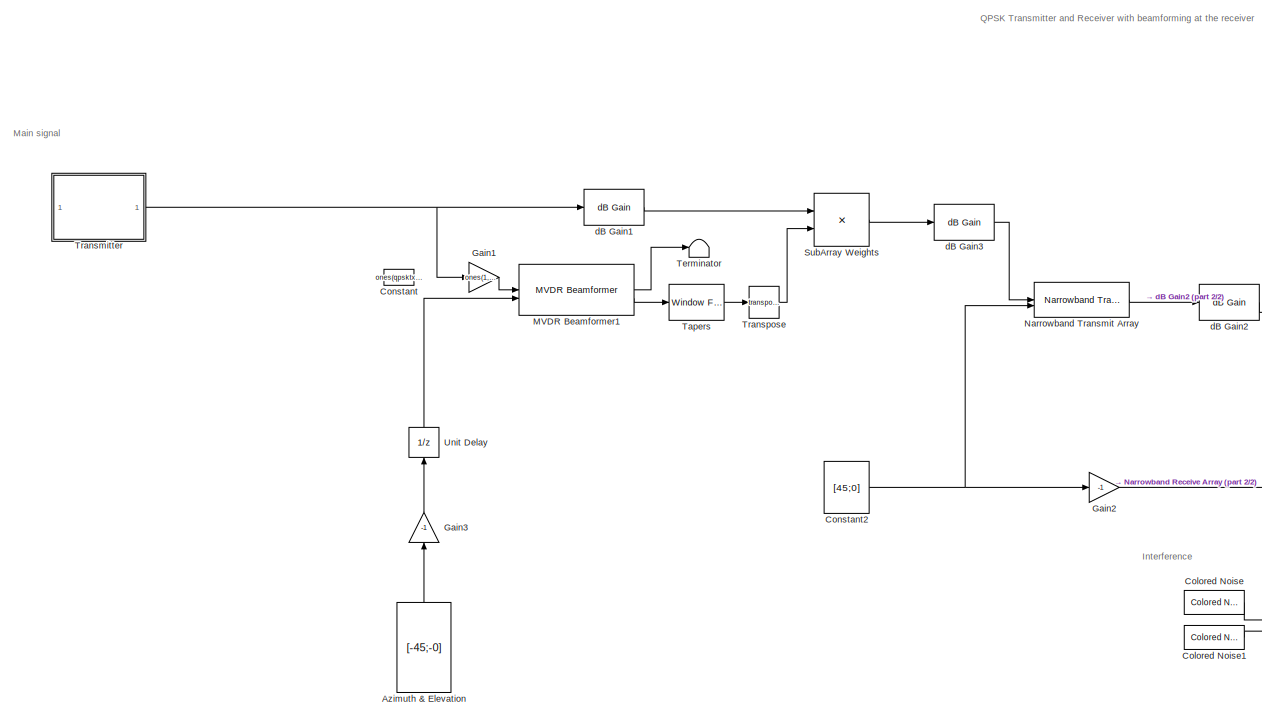
[diagram: root canvas - part 1/2, left side, full height]
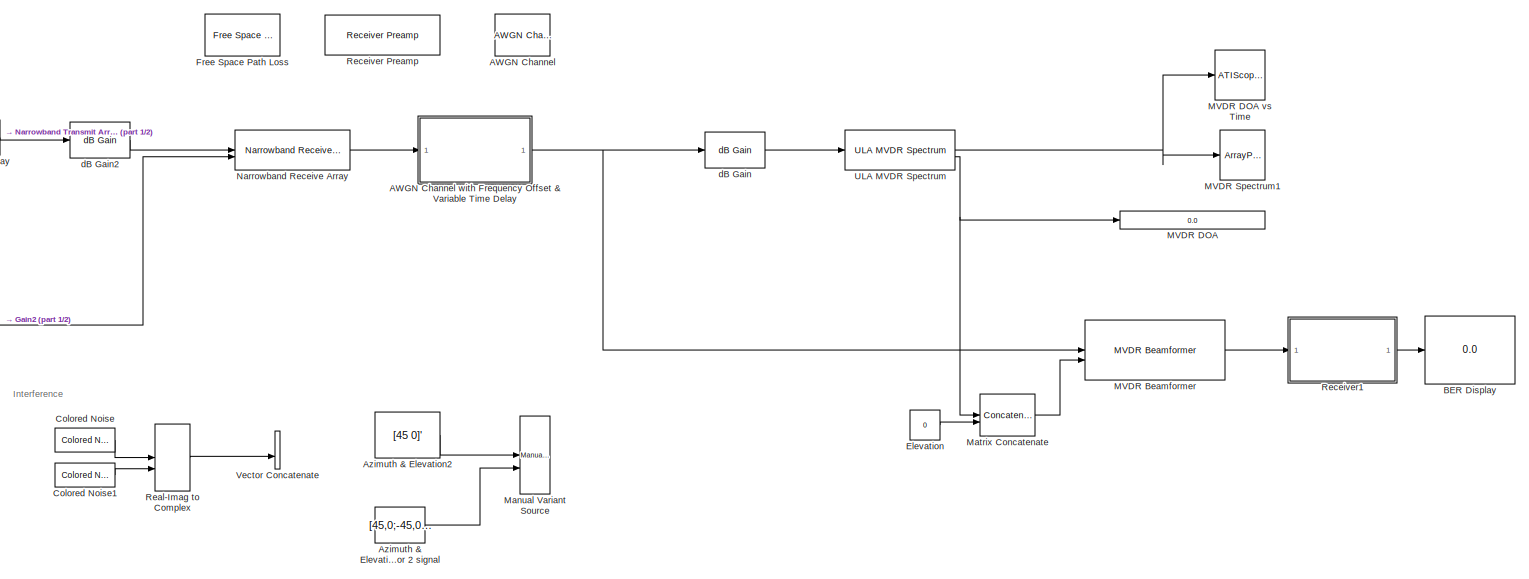
[diagram: root canvas - part 2/2, right side, full height]
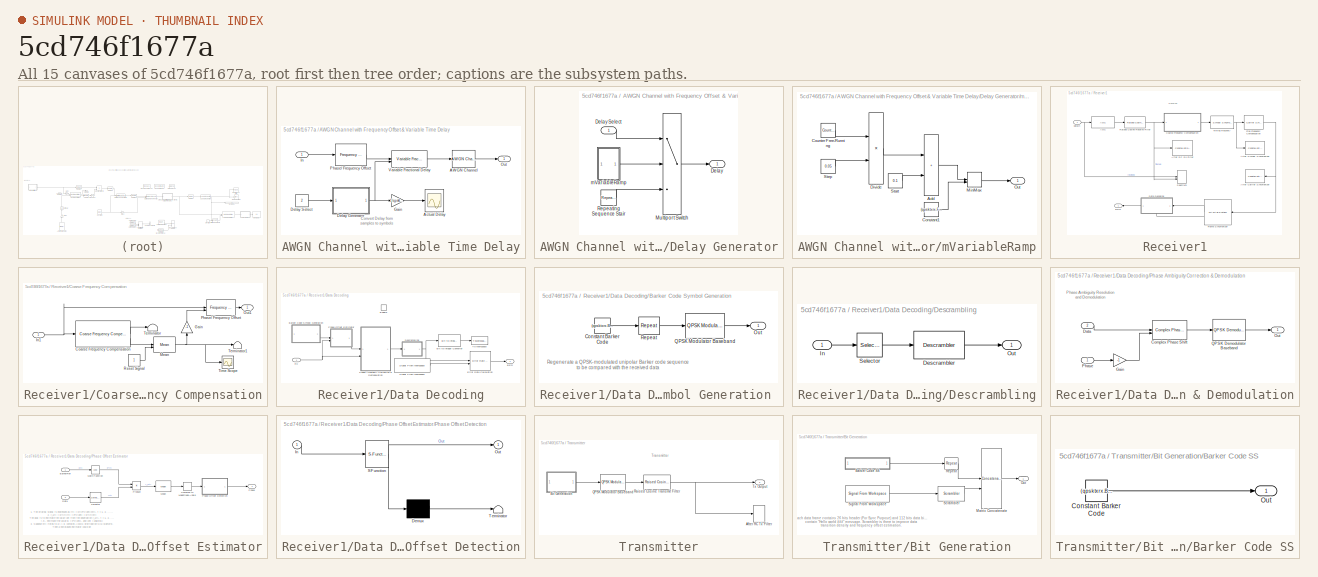
[diagram: thumbnail index - all 15 canvases of the model, root first then tree order]
MODEL slx_5cd746f1677a
KIND model
CONFIG AbsTol = auto
CONFIG EnableMultiTasking = off
CONFIG FixedStep = auto
CONFIG MaxStep = auto
CONFIG MinStep = auto
CONFIG RelTol = 1e-3
CONFIG SampleTimeConstraint = Unconstrained
CONFIG SolverName = FixedStepAuto
CONFIG StartTime = 0.0
CONFIG StopTime = inf
BLOCK [Reference] AWGN Channel  REF=commchan3/AWGN
Channel
  Commented = on
  SourceBlock = commchan3/AWGN\nChannel
  SourceType = AWGN Channel
  UserDataPersistent = on
BLOCK [SubSystem] AWGN Channel with Frequency Offset & Variable Time Delay
BLOCK [Reference] AWGN Channel with Frequency Offset & Variable Time Delay/AWGN Channel  REF=commchan3/AWGN
Channel
  SourceBlock = commchan3/AWGN\nChannel
  SourceType = AWGN Channel
  UserDataPersistent = on
BLOCK [Scope] AWGN Channel with Frequency Offset & Variable Time Delay/Actual Delay
  Commented = on
  DefaultConfigurationName = spbscopes.TimeScopeBlockCfg
  Floating = off
  NumInputPorts = 1
  ScopeSpecificationString = spbscopes.TimeScopeBlockCfg('CurrentConfiguration', extmgr.ConfigurationSet(extmgr.Configuration('Core','General UI',true,'FigureColor',[0.701960784313725 0.701960784313725 0.701960784313725]),extmgr.Configuration('Core','Source UI',true),extmgr.Configuration('Sources','WiredSimulink',true,'DataLoggingVariableName','ScopeDataActualDelay'),extmgr.Configuration('Visuals','Time Domain',true,'DisplayP...<+1372ch>
BLOCK [SubSystem] AWGN Channel with Frequency Offset & Variable Time Delay/Delay Generator
BLOCK [Outport] AWGN Channel with Frequency Offset & Variable Time Delay/Delay Generator/Delay
  VectorParamsAs1DForOutWhenUnconnected = off
BLOCK [Inport] AWGN Channel with Frequency Offset & Variable Time Delay/Delay Generator/Delay Select
BLOCK [MultiPortSwitch] AWGN Channel with Frequency Offset & Variable Time Delay/Delay Generator/Multiport Switch
  InputSameDT = off
  Inputs = 2
  OutDataTypeStr = double
  SaturateOnIntegerOverflow = off
BLOCK [Reference] AWGN Channel with Frequency Offset & Variable Time Delay/Delay Generator/Repeating Sequence Stair  REF=simulink/Sources/Repeating
Sequence
Stair
  SourceBlock = simulink/Sources/Repeating\nSequence\nStair
  SourceType = Repeating Sequence Stair
BLOCK [SubSystem] AWGN Channel with Frequency Offset & Variable Time Delay/Delay Generator/mVariableRamp
BLOCK [Sum] AWGN Channel with Frequency Offset & Variable Time Delay/Delay Generator/mVariableRamp/Add
  IconShape = rectangular
BLOCK [Constant] AWGN Channel with Frequency Offset & Variable Time Delay/Delay Generator/mVariableRamp/Constant1
  Value = (qpsktxrx.FrameSize-qpsktxrx.RaisedCosineFilterSpan)*qpsktxrx.Interpolation
BLOCK [Reference] AWGN Channel with Frequency Offset & Variable Time Delay/Delay Generator/mVariableRamp/Counter Free-Running  REF=simulink/Sources/Counter
Free-Running
  SourceBlock = simulink/Sources/Counter\nFree-Running
  SourceType = Counter Free-Running
BLOCK [Product] AWGN Channel with Frequency Offset & Variable Time Delay/Delay Generator/mVariableRamp/Divide
  Inputs = **
BLOCK [MinMax] AWGN Channel with Frequency Offset & Variable Time Delay/Delay Generator/mVariableRamp/MinMax
  Inputs = 2
BLOCK [Outport] AWGN Channel with Frequency Offset & Variable Time Delay/Delay Generator/mVariableRamp/Out
  VectorParamsAs1DForOutWhenUnconnected = off
BLOCK [Constant] AWGN Channel with Frequency Offset & Variable Time Delay/Delay Generator/mVariableRamp/Start
  Value = 0.1
BLOCK [Constant] AWGN Channel with Frequency Offset & Variable Time Delay/Delay Generator/mVariableRamp/Step
  Value = 0.05
BLOCK [Constant] AWGN Channel with Frequency Offset & Variable Time Delay/Delay Select
  Value = 2
BLOCK [Gain] AWGN Channel with Frequency Offset & Variable Time Delay/Gain
  Gain = 1/qpsktxrx.Interpolation
BLOCK [Inport] AWGN Channel with Frequency Offset & Variable Time Delay/In
BLOCK [Outport] AWGN Channel with Frequency Offset & Variable Time Delay/Out
  VectorParamsAs1DForOutWhenUnconnected = off
BLOCK [Reference] AWGN Channel with Frequency Offset & Variable Time Delay/Phase// Frequency Offset  REF=commrflib2/Phase//
Frequency
Offset
  SourceBlock = commrflib2/Phase//\nFrequency\nOffset
  SourceType = Phase/Frequency Offset
BLOCK [Reference] AWGN Channel with Frequency Offset & Variable Time Delay/Variable Fractional Delay  REF=dspsigops/Variable
Fractional Delay
  SourceBlock = dspsigops/Variable\nFractional Delay
  SourceType = Variable Fractional Delay
  UserDataPersistent = on
BLOCK [Constant] Azimuth & Elevation
  NameLocation = right
  Value = [-45;-0]
BLOCK [Constant] Azimuth & Elevation for 2 signal
  Commented = on
  Value = [45,0;-45,0]'
  VectorParams1D = off
BLOCK [Constant] Azimuth & Elevation2
  Commented = on
  Value = [45 0]'
BLOCK [Display] BER Display
  Decimation = 1
BLOCK [Reference] Colored Noise  REF=dspsrcs4/Colored Noise
  Commented = on
  SourceBlock = dspsrcs4/Colored Noise
  SourceType = dsp.simulink.ColoredNoise
BLOCK [Reference] Colored Noise1  REF=dspsrcs4/Colored Noise
  Commented = on
  SourceBlock = dspsrcs4/Colored Noise
  SourceType = dsp.simulink.ColoredNoise
BLOCK [Constant] Constant
  Commented = on
  Value = ones(qpsktxrx.PayloadLength+qpsktxrx.HeaderLength,4)
  VectorParams1D = off
BLOCK [Constant] Constant2
  Value = [45;0]
BLOCK [Constant] Elevation
  Value = 0
BLOCK [Reference] Free Space Path Loss  REF=commrflib2/Free Space
Path Loss
  Commented = on
  SourceBlock = commrflib2/Free Space\nPath Loss
  SourceType = Free Space Path Loss
BLOCK [Gain] Gain1
  Gain = ones(1,Tx_Antennas.NumElements)
  Multiplication = Matrix(u*K)
BLOCK [Gain] Gain2
  Gain = -1
BLOCK [Gain] Gain3
  Gain = -1
  NameLocation = right
BLOCK [Reference] MVDR Beamformer  REF=phasedbflib/MVDR Beamformer
  SourceBlock = phasedbflib/MVDR Beamformer
  SourceType = phased.MVDRBeamformer
BLOCK [Reference] MVDR Beamformer1  REF=phasedbflib/MVDR Beamformer
  SourceBlock = phasedbflib/MVDR Beamformer
  SourceType = phased.MVDRBeamformer
BLOCK [Display] MVDR DOA
  Decimation = 1
BLOCK [ATIScopeBlock] MVDR DOA vs Time
  AngleLabel = Azimuth Angles (degree)
  Commented = on
  ScopeFrameLocation = window
  TimeResolution = 0.3
  TimeResolutionSource = Property
  TimeSpan = 600
  TimeSpanSource = Property
  Title = Angle of Arrival vs. Time
  WasSavedAsWebScope = on
  WindowPosition = [64.000000,127.000000,669.000000,551.000000,]
BLOCK [ArrayPlot] MVDR Spectrum1
  AxesScaling = Manual
  DefaultConfigurationName = dsp.scopes.ArrayPlotBlockSpecification
  GraphicalSettings = {"Style":{"BackgroundColor":[0.1568627450980392,0.1568627450980392,0.1568627450980392],"AxesColor":[0,0,0],"LabelsColor":[0.6862745098039216,0.6862745098039216,0.6862745098039216],"PreserveColors":false,"Visible":[true],"LineStyle":["-"],"LineColor":[[1,1,0.06666666666666667]],"LineWidth":[1.5],"Marker":["none"],"FontSize":"small"},"Cursors":{"Enabled":false,"XLocation":[2,8],"YLocation":[2,8],"Sn...<+439ch>
  PlotType = Line
  ScopeFrameLocation = window
  ShowLegend = on
  Title = MVDR Spectrum
  WasSavedAsWebScope = on
  WindowPosition = [29.000000,255.000000,1050.000000,666.000000,]
  XLabel = Angle (degrees)
  XOffset = 10
  YLabel = Magnitude
  YLimits = [-1,10]
BLOCK [Reference] Manual Variant Source  REF=simulink/Signal
Routing/Manual
Variant Source
  Commented = on
  SourceBlock = simulink/Signal\nRouting/Manual\nVariant Source
  SourceType = ManualVariantSource
BLOCK [Concatenate] Matrix Concatenate
  ConcatenateDimension = 2
BLOCK [Reference] Narrowband Receive Array  REF=phasedtxrxlib/Narrowband Receive Array
  SourceBlock = phasedtxrxlib/Narrowband Receive Array
  SourceType = phased.Collector
BLOCK [Reference] Narrowband Transmit Array  REF=phasedtxrxlib/Narrowband Transmit Array
  SourceBlock = phasedtxrxlib/Narrowband Transmit Array
  SourceType = phased.Radiator
BLOCK [RealImagToComplex] Real-Imag to Complex
  Commented = on
BLOCK [Reference] Receiver Preamp  REF=phasedtxrxlib/Receiver Preamp
  Commented = on
  SourceBlock = phasedtxrxlib/Receiver Preamp
  SourceType = phased.internal.SimulinkReceiverPreamp
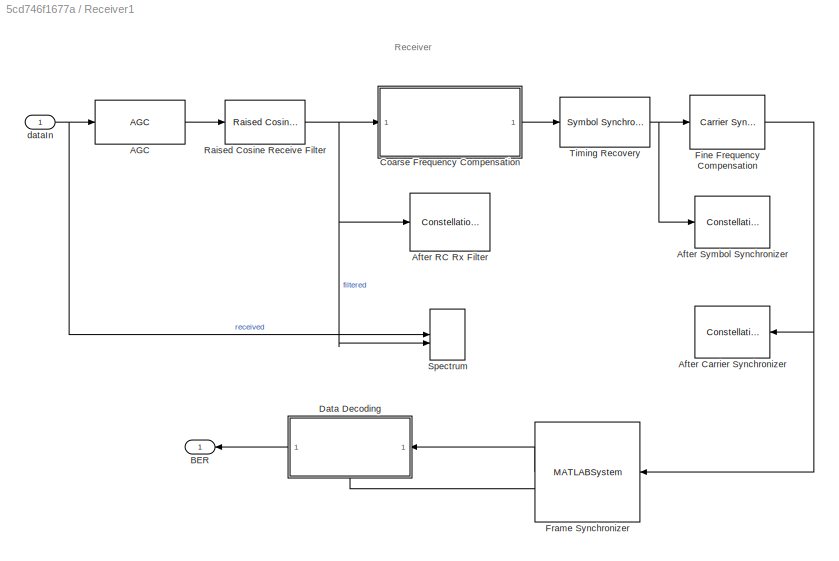
BLOCK [SubSystem] Receiver1
BLOCK [Reference] Receiver1/AGC  REF=commrfcorlib/AGC
  SourceBlock = commrfcorlib/AGC
  SourceType = AGC
BLOCK [ConstellationDiagram] Receiver1/After Carrier Synchronizer
  DefaultConfigurationName = comm.scopes.ConstellationDiagramBlockCfg
  EnableMeasurements = on
  GraphicalSettings = {"GraphicalSettings":{"Style":{"AuxLineProperties":"struct","AveragePower":"2","AxesProperties":"struct","Color":"[0 0 0]","CurrentConfiguration":"extmgr.ConfigurationSet","LineColor":"[1 1 0.0666666666666667]","LineProperties":"struct","LineStyle":"-","LineWidth":"0.5","Marker":".","MarkerEdgeColor":"auto","MarkerFaceColor":"none","MarkerSize":"6","MaxXLim":"3","MaxYLim":"3","MinXLim":"-3","MinYL...<+573ch>
  ReferenceConstellation = QPSK
  SamplesPerSymbol = qpsktxrx.Interpolation
  ScopeFrameLocation = window
  ScopeSpecificationString = comm.scopes.ConstellationDiagramBlockCfg('CurrentConfiguration', extmgr.ConfigurationSet(extmgr.Configuration('Core','General UI',true),extmgr.Configuration('Core','Source UI',true),extmgr.Configuration('Sources','WiredSimulink',true),extmgr.Configuration('Sources','File',false),extmgr.Configuration('Sources','Workspace',false),extmgr.Configuration('Sources','Streaming',false),extmgr.Configuration...<+2628ch>
  SymbolsToDisplay = qpsktxrx.FrameSize
  SymbolsToDisplaySource = Property
  Tag = ScatterPlot
  Title = After Carrier Synchronizer
  WasSavedAsWebScope = on
  WindowPosition = [668.000000,189.000000,534.000000,257.000000,]
  XLimits = [-3 3]
  YLimits = [-3 3]
BLOCK [ConstellationDiagram] Receiver1/After RC Rx Filter
  DefaultConfigurationName = comm.scopes.ConstellationDiagramBlockCfg
  GraphicalSettings = {"GraphicalSettings":{"Style":{"AuxLineProperties":"struct","AveragePower":"2","AxesProperties":"struct","Color":"[0 0 0]","CurrentConfiguration":"extmgr.ConfigurationSet","LineColor":"[1 1 0.0666666666666667]","LineProperties":"struct","LineStyle":"-","LineWidth":"0.5","Marker":".","MarkerEdgeColor":"auto","MarkerFaceColor":"none","MarkerSize":"6","MaxXLim":"3.2134","MaxYLim":"3.2134","MinXLim":"...<+567ch>
  ReferenceConstellation = QPSK
  SamplesPerSymbol = qpsktxrx.Interpolation
  ScopeFrameLocation = window
  ScopeSpecificationString = comm.scopes.ConstellationDiagramBlockCfg('CurrentConfiguration', extmgr.ConfigurationSet(extmgr.Configuration('Core','General UI',true),extmgr.Configuration('Core','Source UI',true),extmgr.Configuration('Sources','WiredSimulink',true),extmgr.Configuration('Sources','Workspace',false),extmgr.Configuration('Sources','Streaming',false),extmgr.Configuration('Sources','Simulink',false),extmgr.Configura...<+2509ch>
  SymbolsToDisplay = qpsktxrx.FrameSize
  SymbolsToDisplaySource = Property
  Tag = ScatterPlot
  Title = After Raised Cosine Rx Filter
  WasSavedAsWebScope = on
  WindowPosition = [66.000000,211.000000,260.000000,258.000000,]
  XLimits = [-3.1734 3.2134]
  YLimits = [-3.1734 3.2134]
BLOCK [ConstellationDiagram] Receiver1/After Symbol Synchronizer
  DefaultConfigurationName = comm.scopes.ConstellationDiagramBlockCfg
  GraphicalSettings = {"GraphicalSettings":{"Style":{"AuxLineProperties":"struct","AveragePower":"2","AxesProperties":"struct","Color":"[0 0 0]","CurrentConfiguration":"extmgr.ConfigurationSet","LineColor":"[1 1 0.0666666666666667]","LineProperties":"struct","LineStyle":"-","LineWidth":"0.5","Marker":".","MarkerEdgeColor":"auto","MarkerFaceColor":"none","MarkerSize":"6","MaxXLim":"2.9872","MaxYLim":"2.9872","MinXLim":"...<+592ch>
  ReferenceConstellation = QPSK
  SamplesPerSymbol = 2
  ScopeFrameLocation = window
  ScopeSpecificationString = comm.scopes.ConstellationDiagramBlockCfg('CurrentConfiguration', extmgr.ConfigurationSet(extmgr.Configuration('Core','General UI',true),extmgr.Configuration('Core','Source UI',true),extmgr.Configuration('Sources','WiredSimulink',true),extmgr.Configuration('Sources','File',false),extmgr.Configuration('Sources','Workspace',false),extmgr.Configuration('Sources','Streaming',false),extmgr.Configuration...<+2507ch>
  SymbolsToDisplay = qpsktxrx.FrameSize
  SymbolsToDisplaySource = Property
  Tag = ScatterPlot
  Title = After Symbol Synchronizer
  WasSavedAsWebScope = on
  WindowPosition = [351.000000,211.000000,284.000000,258.000000,]
  XLimits = [-3.0085 2.9872]
  YLimits = [-3.0085 2.9872]
BLOCK [Outport] Receiver1/BER
  VectorParamsAs1DForOutWhenUnconnected = off
BLOCK [SubSystem] Receiver1/Coarse Frequency Compensation
BLOCK [Reference] Receiver1/Coarse Frequency Compensation/Coarse Frequency Compensation  REF=commrfcorlib/Coarse Frequency
Compensator
  SourceBlock = commrfcorlib/Coarse Frequency\nCompensator
  SourceType = Coarse Frequency Compensator
BLOCK [Gain] Receiver1/Coarse Frequency Compensation/Gain
  Gain = -1
  NameLocation = right
BLOCK [Inport] Receiver1/Coarse Frequency Compensation/In1
BLOCK [Reference] Receiver1/Coarse Frequency Compensation/Mean  REF=dspstat3/Mean
  SourceBlock = dspstat3/Mean
  SourceType = Mean
  UserDataPersistent = on
BLOCK [Outport] Receiver1/Coarse Frequency Compensation/Out1
  VectorParamsAs1DForOutWhenUnconnected = off
BLOCK [Reference] Receiver1/Coarse Frequency Compensation/Phase// Frequency Offset  REF=commrflib2/Phase//
Frequency
Offset
  SourceBlock = commrflib2/Phase//\nFrequency\nOffset
  SourceType = Phase/Frequency Offset
BLOCK [Constant] Receiver1/Coarse Frequency Compensation/Reset Signal
BLOCK [Terminator] Receiver1/Coarse Frequency Compensation/Terminator
BLOCK [Terminator] Receiver1/Coarse Frequency Compensation/Terminator1
BLOCK [Scope] Receiver1/Coarse Frequency Compensation/Time Scope
  Commented = on
  DefaultConfigurationName = spbscopes.TimeScopeBlockCfg
  Floating = off
  NumInputPorts = 1
  ScopeSpecificationString = spbscopes.TimeScopeBlockCfg('CurrentConfiguration', extmgr.ConfigurationSet(extmgr.Configuration('Core','General UI',true),extmgr.Configuration('Core','Source UI',true),extmgr.Configuration('Sources','WiredSimulink',true,'DataLoggingVariableName','ScopeData1'),extmgr.Configuration('Visuals','Time Domain',true),extmgr.Configuration('Tools','Plot Navigation',true),extmgr.Configuration('Tools','Measu...<+34ch>
  UserDataPersistent = on
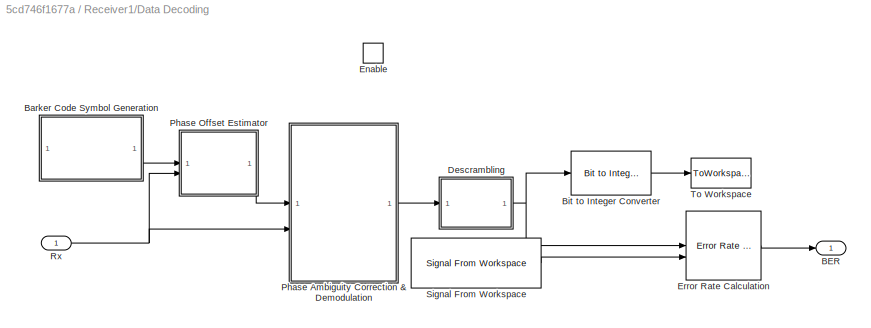
BLOCK [SubSystem] Receiver1/Data Decoding
  NameLocation = top
BLOCK [Outport] Receiver1/Data Decoding/BER
  VectorParamsAs1DForOutWhenUnconnected = off
BLOCK [SubSystem] Receiver1/Data Decoding/Barker Code Symbol Generation 
BLOCK [Constant] Receiver1/Data Decoding/Barker Code Symbol Generation /Constant Barker Code
  OutDataTypeStr = double
  Value = (qpsktxrx.BarkerCode)' > 0
  VectorParams1D = off
BLOCK [Outport] Receiver1/Data Decoding/Barker Code Symbol Generation /Out
  VectorParamsAs1DForOutWhenUnconnected = off
BLOCK [Reference] Receiver1/Data Decoding/Barker Code Symbol Generation /QPSK Modulator Baseband  REF=commdigbbndpm3/QPSK
Modulator
Baseband
  SourceBlock = commdigbbndpm3/QPSK\nModulator\nBaseband
  SourceType = QPSK Modulator Baseband
BLOCK [Reference] Receiver1/Data Decoding/Barker Code Symbol Generation /Repeat  REF=dspsigops/Repeat
  SourceBlock = dspsigops/Repeat
  SourceType = Repeat
  UserDataPersistent = on
BLOCK [Reference] Receiver1/Data Decoding/Bit to Integer Converter  REF=simulink/Logic and Bit
Operations/Bit to Integer
Converter
  SourceBlock = simulink/Logic and Bit\nOperations/Bit to Integer\nConverter
  SourceType = Bit to Integer Converter
BLOCK [SubSystem] Receiver1/Data Decoding/Descrambling
BLOCK [Reference] Receiver1/Data Decoding/Descrambling/Descrambler  REF=commsequence2/Descrambler
  SourceBlock = commsequence2/Descrambler
  SourceType = Descrambler
BLOCK [Inport] Receiver1/Data Decoding/Descrambling/In
BLOCK [Outport] Receiver1/Data Decoding/Descrambling/Out
  VectorParamsAs1DForOutWhenUnconnected = off
BLOCK [Selector] Receiver1/Data Decoding/Descrambling/Selector
  IndexOptions = Index vector (dialog)
  Indices = [qpsktxrx.HeaderLength+(1 : qpsktxrx.PayloadLength)]
  OutputSizes = 1
BLOCK [EnablePort] Receiver1/Data Decoding/Enable
BLOCK [Reference] Receiver1/Data Decoding/Error Rate Calculation  REF=commsink2/Error Rate
Calculation
  SourceBlock = commsink2/Error Rate\nCalculation
  SourceType = Error Rate Calculation
BLOCK [SubSystem] Receiver1/Data Decoding/Phase Ambiguity Correction & Demodulation
BLOCK [Reference] Receiver1/Data Decoding/Phase Ambiguity Correction & Demodulation/Complex Phase Shift  REF=commutil2/Complex Phase
Shift
  SourceBlock = commutil2/Complex Phase\nShift
  SourceType = Complex Phase Shift
BLOCK [Inport] Receiver1/Data Decoding/Phase Ambiguity Correction & Demodulation/Data
  Port = 2
BLOCK [Gain] Receiver1/Data Decoding/Phase Ambiguity Correction & Demodulation/Gain
  Gain = -1
  OutDataTypeStr = Inherit: Same as input
BLOCK [Outport] Receiver1/Data Decoding/Phase Ambiguity Correction & Demodulation/Out
  VectorParamsAs1DForOutWhenUnconnected = off
BLOCK [Inport] Receiver1/Data Decoding/Phase Ambiguity Correction & Demodulation/Phase
BLOCK [Reference] Receiver1/Data Decoding/Phase Ambiguity Correction & Demodulation/QPSK Demodulator Baseband  REF=commdigbbndpm3/QPSK
Demodulator
Baseband
  SourceBlock = commdigbbndpm3/QPSK\nDemodulator\nBaseband
  SourceType = QPSK Demodulator Baseband
BLOCK [SubSystem] Receiver1/Data Decoding/Phase Offset Estimator
BLOCK [Inport] Receiver1/Data Decoding/Phase Offset Estimator/BarkerRef
BLOCK [ComplexToMagnitudeAngle] Receiver1/Data Decoding/Phase Offset Estimator/Complex to Magnitude-Angle
  Output = Angle
BLOCK [Inport] Receiver1/Data Decoding/Phase Offset Estimator/Data
  Port = 2
BLOCK [Math] Receiver1/Data Decoding/Phase Offset Estimator/Math Function
  Operator = conj
  SignedPower = on
BLOCK [Reference] Receiver1/Data Decoding/Phase Offset Estimator/Mean  REF=dspstat3/Mean
  SourceBlock = dspstat3/Mean
  SourceType = Mean
  UserDataPersistent = on
BLOCK [Outport] Receiver1/Data Decoding/Phase Offset Estimator/Phase
  VectorParamsAs1DForOutWhenUnconnected = off
BLOCK [SubSystem] Receiver1/Data Decoding/Phase Offset Estimator/Phase Offset Detection
  ErrorFcn = Stateflow.Translate.translate
  PermitHierarchicalResolution = ExplicitOnly
  SFBlockType = MATLAB Function
  TreatAsAtomicUnit = on
BLOCK [Demux] Receiver1/Data Decoding/Phase Offset Estimator/Phase Offset Detection/ Demux 
  Outputs = 1
BLOCK [S-Function] Receiver1/Data Decoding/Phase Offset Estimator/Phase Offset Detection/ SFunction 
  EnableBusSupport = on
  FunctionName = sf_sfun
  PortCounts = [1 2]
  SFcnIsStateOwnerBlock = off
  SFunctionDeploymentMode = off
  Tag = Stateflow S-Function 1
BLOCK [Terminator] Receiver1/Data Decoding/Phase Offset Estimator/Phase Offset Detection/ Terminator 
BLOCK [Inport] Receiver1/Data Decoding/Phase Offset Estimator/Phase Offset Detection/In
BLOCK [Outport] Receiver1/Data Decoding/Phase Offset Estimator/Phase Offset Detection/Out
  VectorParamsAs1DForOutWhenUnconnected = off
BLOCK [Product] Receiver1/Data Decoding/Phase Offset Estimator/Product
  RndMeth = Zero
BLOCK [Selector] Receiver1/Data Decoding/Phase Offset Estimator/Selector
  IndexOptions = Index vector (dialog)
  Indices = [1:qpsktxrx.BarkerLength]
  OutputSizes = 1
BLOCK [Inport] Receiver1/Data Decoding/Rx
BLOCK [Reference] Receiver1/Data Decoding/Signal From Workspace  REF=dspsrcs4/Signal From
Workspace
  SourceBlock = dspsrcs4/Signal From\nWorkspace
  SourceType = Signal From Workspace
BLOCK [ToWorkspace] Receiver1/Data Decoding/To Workspace
  FixptAsFi = on
  MaxDataPoints = inf
  SampleTime = -1
  Save2DSignal = 2-D array (concatenate along first dimension)
  SaveFormat = Structure
  VariableName = Received
BLOCK [Reference] Receiver1/Fine Frequency Compensation  REF=commsync2/Carrier Synchronizer
  SourceBlock = commsync2/Carrier Synchronizer
  SourceType = Carrier Synchronizer
BLOCK [MATLABSystem] Receiver1/Frame Synchronizer
  MaskDisplay = disp(['Frame' char(10) 'Synchronizer']);\nport_label('input',1,'x');\nport_label('output',1,'Frame');\nport_label('output',2,'Valid');
  MaskType = FrameSynchronizer
  OutputLength = qpsktxrx.FrameSize
  Preamble = sqrt(2)/2 * (-1-1i) * (qpsktxrx.BarkerCode)'
  SimulateUsing = Code generation
  System = FrameSynchronizer
  Threshold = qpsktxrx.PreambleDetectionThreshold
BLOCK [Reference] Receiver1/Raised Cosine Receive Filter  REF=commfilt2/Raised Cosine
Receive Filter
  SourceBlock = commfilt2/Raised Cosine\nReceive Filter
  SourceType = Raised Cosine Receive Filter
  UserDataPersistent = on
BLOCK [SpectrumAnalyzer] Receiver1/Spectrum
  AveragingMethod = Running
  AxesScaling = Manual
  Commented = on
  FFTLength = 128
  GraphicalSettings = {"GraphicalSettings":{"Style":{"BackgroundColor":[0.1568627450980392,0.1568627450980392,0.1568627450980392],"AxesColor":[0,0,0],"LabelsColor":[0.4,0.4,0.4],"PreserveColors":false,"Visible":[true,true],"LineStyle":["-","-"],"LineColor":[[1,1,0.06666666666666667],[0.07058823529411765,0.6235294117647059,1]],"LineWidth":[0.5,0.5],"Marker":["none","none"],"FontSize":"small"},"Cursors":{"Enabled":false,...<+849ch>
  Method = Welch
  NumInputPorts = 2
  RBW = 75
  RBWSource = Property
  SampleRate = 100000
  ScopeFrameLocation = window
  ScopeSpecificationString = spbscopes.SpectrumAnalyzerBlockCfg('CurrentConfiguration', extmgr.ConfigurationSet(extmgr.Configuration('Core','General UI',true,'DisplayFullSourceName',true,'ShowPlaybackToolbar',false,'FigureColor',[0.701960784313725 0.701960784313725 0.701960784313725]),extmgr.Configuration('Core','Source UI',true),extmgr.Configuration('Sources','WiredSimulink',true),extmgr.Configuration('Sources','Streaming',f...<+3112ch>
  ShowLegend = on
  Span = 100000
  SpectralAverages = 2
  SpectrumUnits = dBW
  StartFrequency = -50000
  StopFrequency = 50000
  Title = After Raised Cosine Rx Filter
  WasSavedAsWebScope = on
  WindowPosition = [1155.000000,275.000000,800.000000,500.000000,]
  YLabel = Power Spectrum
  YLimits = [-137.6344738236879266 40]
BLOCK [Reference] Receiver1/Timing Recovery  REF=commsync2/Symbol Synchronizer
  SourceBlock = commsync2/Symbol Synchronizer
  SourceType = Symbol Synchronizer
BLOCK [Inport] Receiver1/dataIn
BLOCK [Product] SubArray Weights
  Multiplication = Matrix(*)
BLOCK [Reference] Tapers  REF=dspsigops/Window
Function
  SourceBlock = dspsigops/Window\nFunction
  SourceType = Window Function
BLOCK [Terminator] Terminator
BLOCK [SubSystem] Transmitter
BLOCK [SpectrumAnalyzer] Transmitter/After RC Tx Filter
  AveragingMethod = Running
  Commented = on
  FFTLength = 128
  GraphicalSettings = {"GraphicalSettings":{"Style":{"AutoscaleXAxis":"true","AxesProperties":"struct","Box":"on","Color":"[0 0 0]","CurrentConfiguration":"extmgr.ConfigurationSet","FontName":"Helvetica","FontSize":"8.5","FontUnits":"points","FontWeight":"normal","IsFstartFstopSettingDirty":"true","IsRBWSettingDirty":"true","IsSpanCFSettingDirty":"true","IsSpanValuesValid":"true","IsValidSettingsDialogReadouts":"false"...<+2144ch>
  Method = Welch
  OpenAtSimulationStart = off
  RBW = 750
  RBWSource = Property
  SampleRate = 200000
  ScopeSpecificationString = spbscopes.SpectrumAnalyzerBlockCfg('CurrentConfiguration', extmgr.ConfigurationSet(extmgr.Configuration('Core','General UI',true,'DisplayFullSourceName',true,'ShowPlaybackToolbar',false,'FigureColor',[0.701960784313725 0.701960784313725 0.701960784313725]),extmgr.Configuration('Core','Source UI',true),extmgr.Configuration('Sources','WiredSimulink',true),extmgr.Configuration('Sources','SPTool',fals...<+6684ch>
  Span = 200000
  SpectralAverages = 2
  SpectrumUnits = dBW
  StartFrequency = -100000
  StopFrequency = 100000
  WasSavedAsWebScope = on
  YLabel = Spectrum after Raised-Cosine Tx Filter
  YLimits = [-114.15736879359562 -6.4493918406395565]
BLOCK [SubSystem] Transmitter/Bit Generation
BLOCK [SubSystem] Transmitter/Bit Generation/Barker Code SS
BLOCK [Constant] Transmitter/Bit Generation/Barker Code SS/Constant Barker Code
  OutDataTypeStr = double
  Value = (qpsktxrx.BarkerCode)' > 0; % Bipolar to Unipolar
  VectorParams1D = off
BLOCK [Outport] Transmitter/Bit Generation/Barker Code SS/Out
  VectorParamsAs1DForOutWhenUnconnected = off
BLOCK [Concatenate] Transmitter/Bit Generation/Matrix Concatenate
  Mode = Multidimensional array
BLOCK [Outport] Transmitter/Bit Generation/Out
  VectorParamsAs1DForOutWhenUnconnected = off
BLOCK [Reference] Transmitter/Bit Generation/Repeat  REF=dspsigops/Repeat
  SourceBlock = dspsigops/Repeat
  SourceType = Repeat
  UserDataPersistent = on
BLOCK [Reference] Transmitter/Bit Generation/Scrambler  REF=commsequence2/Scrambler
  SourceBlock = commsequence2/Scrambler
  SourceType = Scrambler
BLOCK [Reference] Transmitter/Bit Generation/Signal From Workspace  REF=dspsrcs4/Signal From
Workspace
  SourceBlock = dspsrcs4/Signal From\nWorkspace
  SourceType = Signal From Workspace
BLOCK [Reference] Transmitter/QPSK Modulator Baseband  REF=commdigbbndpm3/QPSK
Modulator
Baseband
  SourceBlock = commdigbbndpm3/QPSK\nModulator\nBaseband
  SourceType = QPSK Modulator Baseband
BLOCK [Reference] Transmitter/Raised Cosine Transmit Filter  REF=commfilt2/Raised Cosine
Transmit Filter
  SourceBlock = commfilt2/Raised Cosine\nTransmit Filter
  SourceType = Raised Cosine Transmit Filter
  UserDataPersistent = on
BLOCK [Outport] Transmitter/Tx Output
  VectorParamsAs1DForOutWhenUnconnected = off
BLOCK [Math] Transpose
  Operator = transpose
BLOCK [Reference] ULA MVDR Spectrum  REF=phaseddoalib/ULA MVDR Spectrum
  SourceBlock = phaseddoalib/ULA MVDR Spectrum
  SourceType = phased.MVDREstimator
BLOCK [UnitDelay] Unit Delay
  HasFrameUpgradeWarning = on
  NameLocation = right
  SampleTime = -1
BLOCK [Concatenate] Vector Concatenate
  Commented = on
  ConcatenateDimension = 2
  Mode = Multidimensional array
  NameLocation = right
BLOCK [Reference] dB Gain  REF=dspmathops/dB Gain
  SourceBlock = dspmathops/dB Gain
  SourceType = dB Gain
BLOCK [Reference] dB Gain1  REF=dspmathops/dB Gain
  SourceBlock = dspmathops/dB Gain
  SourceType = dB Gain
BLOCK [Reference] dB Gain2  REF=dspmathops/dB Gain
  SourceBlock = dspmathops/dB Gain
  SourceType = dB Gain
BLOCK [Reference] dB Gain3  REF=dspmathops/dB Gain
  SourceBlock = dspmathops/dB Gain
  SourceType = dB Gain
ANNOTATION (root): Interference
ANNOTATION (root): Main signal
ANNOTATION (root): QPSK Transmitter and Receiver with beamforming at the receiver
ANNOTATION AWGN Channel with Frequency Offset & Variable Time Delay: Convert Delay from samples to symbols
ANNOTATION Receiver1: Receiver
ANNOTATION Receiver1/Data Decoding/Barker Code Symbol Generation : Regenerate a QPSK-modulated unipolar Barker code sequence to be compared with the received data
ANNOTATION Receiver1/Data Decoding/Phase Ambiguity Correction & Demodulation: Phase Ambiguity Resolution and Demodulation
ANNOTATION Receiver1/Data Decoding/Phase Offset Estimator: 1. The original signal is expressed as y(t) = x(t)e^{j\phi}+n(t), t = 1, 2, ..., N 2. y_1(t) = x{*}(t)y(t) = e^{j\phi} + x{*}(t)n(t) The goal is to estimate the value \phi from the observation y_1(t), t = 1, 2, ...N i.e., estimate the value B = e^{j\phi}, and \phi = angle(B) 3. Suppose n(t) yields to a i.i.d. complex AWGN distribution N(0,\sigma^2). Then a non-biased estimator could be B_{est} = 1...<+91ch>
ANNOTATION Transmitter: Transmitter
ANNOTATION Transmitter/Bit Generation: Each data frame contains 26 bits header (For Sync Purpose) and 112 bits data bits contain "Hello world ###" message. Scrambler is there to improve data transition density and frequency offset estimation.
LINE AWGN Channel with Frequency Offset & Variable Time Delay/AWGN Channel:1 -> AWGN Channel with Frequency Offset & Variable Time Delay/Out:1
LINE AWGN Channel with Frequency Offset & Variable Time Delay/Delay Generator/Delay Select:1 -> AWGN Channel with Frequency Offset & Variable Time Delay/Delay Generator/Multiport Switch:1
LINE AWGN Channel with Frequency Offset & Variable Time Delay/Delay Generator/Multiport Switch:1 -> AWGN Channel with Frequency Offset & Variable Time Delay/Delay Generator/Delay:1
LINE AWGN Channel with Frequency Offset & Variable Time Delay/Delay Generator/Repeating Sequence Stair:1 -> AWGN Channel with Frequency Offset & Variable Time Delay/Delay Generator/Multiport Switch:3
LINE AWGN Channel with Frequency Offset & Variable Time Delay/Delay Generator/mVariableRamp/Add:1 -> AWGN Channel with Frequency Offset & Variable Time Delay/Delay Generator/mVariableRamp/MinMax:1
LINE AWGN Channel with Frequency Offset & Variable Time Delay/Delay Generator/mVariableRamp/Constant1:1 -> AWGN Channel with Frequency Offset & Variable Time Delay/Delay Generator/mVariableRamp/MinMax:2
LINE AWGN Channel with Frequency Offset & Variable Time Delay/Delay Generator/mVariableRamp/Counter Free-Running:1 -> AWGN Channel with Frequency Offset & Variable Time Delay/Delay Generator/mVariableRamp/Divide:1
LINE AWGN Channel with Frequency Offset & Variable Time Delay/Delay Generator/mVariableRamp/Divide:1 -> AWGN Channel with Frequency Offset & Variable Time Delay/Delay Generator/mVariableRamp/Add:1
LINE AWGN Channel with Frequency Offset & Variable Time Delay/Delay Generator/mVariableRamp/MinMax:1 -> AWGN Channel with Frequency Offset & Variable Time Delay/Delay Generator/mVariableRamp/Out:1
LINE AWGN Channel with Frequency Offset & Variable Time Delay/Delay Generator/mVariableRamp/Start:1 -> AWGN Channel with Frequency Offset & Variable Time Delay/Delay Generator/mVariableRamp/Add:2
LINE AWGN Channel with Frequency Offset & Variable Time Delay/Delay Generator/mVariableRamp/Step:1 -> AWGN Channel with Frequency Offset & Variable Time Delay/Delay Generator/mVariableRamp/Divide:2
LINE AWGN Channel with Frequency Offset & Variable Time Delay/Delay Generator/mVariableRamp:1 -> AWGN Channel with Frequency Offset & Variable Time Delay/Delay Generator/Multiport Switch:2
NET AWGN Channel with Frequency Offset & Variable Time Delay/Delay Generator:1 -> AWGN Channel with Frequency Offset & Variable Time Delay/Gain:1, AWGN Channel with Frequency Offset & Variable Time Delay/Variable Fractional Delay:2
LINE AWGN Channel with Frequency Offset & Variable Time Delay/Delay Select:1 -> AWGN Channel with Frequency Offset & Variable Time Delay/Delay Generator:1
LINE AWGN Channel with Frequency Offset & Variable Time Delay/Gain:1 -> AWGN Channel with Frequency Offset & Variable Time Delay/Actual Delay:1
LINE AWGN Channel with Frequency Offset & Variable Time Delay/In:1 -> AWGN Channel with Frequency Offset & Variable Time Delay/Phase// Frequency Offset:1
LINE AWGN Channel with Frequency Offset & Variable Time Delay/Phase// Frequency Offset:1 -> AWGN Channel with Frequency Offset & Variable Time Delay/Variable Fractional Delay:1
LINE AWGN Channel with Frequency Offset & Variable Time Delay/Variable Fractional Delay:1 -> AWGN Channel with Frequency Offset & Variable Time Delay/AWGN Channel:1
NET AWGN Channel with Frequency Offset & Variable Time Delay:1 -> MVDR Beamformer:1, dB Gain:1
LINE Azimuth & Elevation for 2 signal:1 -> Manual Variant Source:2
LINE Azimuth & Elevation2:1 -> Manual Variant Source:1
LINE Azimuth & Elevation:1 -> Gain3:1
LINE Colored Noise1:1 -> Real-Imag to Complex:2
LINE Colored Noise:1 -> Real-Imag to Complex:1
NET Constant2:1 -> Gain2:1, Narrowband Transmit Array:2
LINE Elevation:1 -> Matrix Concatenate:2
LINE Gain1:1 -> MVDR Beamformer1:1
LINE Gain2:1 -> Narrowband Receive Array:2
LINE Gain3:1 -> Unit Delay:1
LINE MVDR Beamformer1:1 -> Terminator:1
LINE MVDR Beamformer1:2 -> Tapers:1
LINE MVDR Beamformer:1 -> Receiver1:1
LINE Matrix Concatenate:1 -> MVDR Beamformer:2
LINE Narrowband Receive Array:1 -> AWGN Channel with Frequency Offset & Variable Time Delay:1
LINE Narrowband Transmit Array:1 -> dB Gain2:1
LINE Real-Imag to Complex:1 -> Vector Concatenate:2
LINE Receiver1/AGC:1 -> Receiver1/Raised Cosine Receive Filter:1
LINE Receiver1/Coarse Frequency Compensation/Coarse Frequency Compensation:1 -> Receiver1/Coarse Frequency Compensation/Terminator:1
LINE Receiver1/Coarse Frequency Compensation/Coarse Frequency Compensation:2 -> Receiver1/Coarse Frequency Compensation/Mean:1
LINE Receiver1/Coarse Frequency Compensation/Gain:1 -> Receiver1/Coarse Frequency Compensation/Phase// Frequency Offset:2
NET Receiver1/Coarse Frequency Compensation/In1:1 -> Receiver1/Coarse Frequency Compensation/Coarse Frequency Compensation:1, Receiver1/Coarse Frequency Compensation/Phase// Frequency Offset:1
NET Receiver1/Coarse Frequency Compensation/Mean:1 -> Receiver1/Coarse Frequency Compensation/Gain:1, Receiver1/Coarse Frequency Compensation/Terminator1:1, Receiver1/Coarse Frequency Compensation/Time Scope:1
LINE Receiver1/Coarse Frequency Compensation/Phase// Frequency Offset:1 -> Receiver1/Coarse Frequency Compensation/Out1:1
LINE Receiver1/Coarse Frequency Compensation/Reset Signal:1 -> Receiver1/Coarse Frequency Compensation/Mean:2
LINE Receiver1/Coarse Frequency Compensation:1 -> Receiver1/Timing Recovery:1
LINE Receiver1/Data Decoding/Barker Code Symbol Generation /Constant Barker Code:1 -> Receiver1/Data Decoding/Barker Code Symbol Generation /Repeat:1
LINE Receiver1/Data Decoding/Barker Code Symbol Generation /QPSK Modulator Baseband:1 -> Receiver1/Data Decoding/Barker Code Symbol Generation /Out:1
LINE Receiver1/Data Decoding/Barker Code Symbol Generation /Repeat:1 -> Receiver1/Data Decoding/Barker Code Symbol Generation /QPSK Modulator Baseband:1
LINE Receiver1/Data Decoding/Barker Code Symbol Generation :1 -> Receiver1/Data Decoding/Phase Offset Estimator:1
LINE Receiver1/Data Decoding/Bit to Integer Converter:1 -> Receiver1/Data Decoding/To Workspace:1
LINE Receiver1/Data Decoding/Descrambling/Descrambler:1 -> Receiver1/Data Decoding/Descrambling/Out:1
LINE Receiver1/Data Decoding/Descrambling/In:1 -> Receiver1/Data Decoding/Descrambling/Selector:1
LINE Receiver1/Data Decoding/Descrambling/Selector:1 -> Receiver1/Data Decoding/Descrambling/Descrambler:1
NET Receiver1/Data Decoding/Descrambling:1 -> Receiver1/Data Decoding/Bit to Integer Converter:1, Receiver1/Data Decoding/Error Rate Calculation:1
LINE Receiver1/Data Decoding/Error Rate Calculation:1 -> Receiver1/Data Decoding/BER:1
LINE Receiver1/Data Decoding/Phase Ambiguity Correction & Demodulation/Complex Phase Shift:1 -> Receiver1/Data Decoding/Phase Ambiguity Correction & Demodulation/QPSK Demodulator Baseband:1
LINE Receiver1/Data Decoding/Phase Ambiguity Correction & Demodulation/Data:1 -> Receiver1/Data Decoding/Phase Ambiguity Correction & Demodulation/Complex Phase Shift:1
LINE Receiver1/Data Decoding/Phase Ambiguity Correction & Demodulation/Gain:1 -> Receiver1/Data Decoding/Phase Ambiguity Correction & Demodulation/Complex Phase Shift:2
LINE Receiver1/Data Decoding/Phase Ambiguity Correction & Demodulation/Phase:1 -> Receiver1/Data Decoding/Phase Ambiguity Correction & Demodulation/Gain:1
LINE Receiver1/Data Decoding/Phase Ambiguity Correction & Demodulation/QPSK Demodulator Baseband:1 -> Receiver1/Data Decoding/Phase Ambiguity Correction & Demodulation/Out:1
LINE Receiver1/Data Decoding/Phase Ambiguity Correction & Demodulation:1 -> Receiver1/Data Decoding/Descrambling:1
LINE Receiver1/Data Decoding/Phase Offset Estimator/BarkerRef:1 -> Receiver1/Data Decoding/Phase Offset Estimator/Math Function:1
LINE Receiver1/Data Decoding/Phase Offset Estimator/Complex to Magnitude-Angle:1 -> Receiver1/Data Decoding/Phase Offset Estimator/Phase Offset Detection:1
LINE Receiver1/Data Decoding/Phase Offset Estimator/Data:1 -> Receiver1/Data Decoding/Phase Offset Estimator/Selector:1
LINE Receiver1/Data Decoding/Phase Offset Estimator/Math Function:1 -> Receiver1/Data Decoding/Phase Offset Estimator/Product:1
LINE Receiver1/Data Decoding/Phase Offset Estimator/Mean:1 -> Receiver1/Data Decoding/Phase Offset Estimator/Complex to Magnitude-Angle:1
LINE Receiver1/Data Decoding/Phase Offset Estimator/Phase Offset Detection:1 -> Receiver1/Data Decoding/Phase Offset Estimator/Phase:1
LINE Receiver1/Data Decoding/Phase Offset Estimator/Product:1 -> Receiver1/Data Decoding/Phase Offset Estimator/Mean:1
LINE Receiver1/Data Decoding/Phase Offset Estimator/Selector:1 -> Receiver1/Data Decoding/Phase Offset Estimator/Product:2
LINE Receiver1/Data Decoding/Phase Offset Estimator:1 -> Receiver1/Data Decoding/Phase Ambiguity Correction & Demodulation:1
NET Receiver1/Data Decoding/Rx:1 -> Receiver1/Data Decoding/Phase Ambiguity Correction & Demodulation:2, Receiver1/Data Decoding/Phase Offset Estimator:2
LINE Receiver1/Data Decoding/Signal From Workspace:1 -> Receiver1/Data Decoding/Error Rate Calculation:2
LINE Receiver1/Data Decoding:1 -> Receiver1/BER:1
NET Receiver1/Fine Frequency Compensation:1 -> Receiver1/After Carrier Synchronizer:1, Receiver1/Frame Synchronizer:1
LINE Receiver1/Frame Synchronizer:1 -> Receiver1/Data Decoding:1
LINE Receiver1/Frame Synchronizer:2 -> Receiver1/Data Decoding:enable
NET Receiver1/Raised Cosine Receive Filter:1 -> Receiver1/After RC Rx Filter:1, Receiver1/Coarse Frequency Compensation:1, Receiver1/Spectrum:2
NET Receiver1/Timing Recovery:1 -> Receiver1/After Symbol Synchronizer:1, Receiver1/Fine Frequency Compensation:1
NET Receiver1/dataIn:1 -> Receiver1/AGC:1, Receiver1/Spectrum:1
LINE Receiver1:1 -> BER Display:1
LINE SubArray Weights:1 -> dB Gain3:1
LINE Tapers:1 -> Transpose:1
LINE Transmitter/Bit Generation/Barker Code SS/Constant Barker Code:1 -> Transmitter/Bit Generation/Barker Code SS/Out:1
LINE Transmitter/Bit Generation/Barker Code SS:1 -> Transmitter/Bit Generation/Repeat:1
LINE Transmitter/Bit Generation/Matrix Concatenate:1 -> Transmitter/Bit Generation/Out:1
LINE Transmitter/Bit Generation/Repeat:1 -> Transmitter/Bit Generation/Matrix Concatenate:1
LINE Transmitter/Bit Generation/Scrambler:1 -> Transmitter/Bit Generation/Matrix Concatenate:2
LINE Transmitter/Bit Generation/Signal From Workspace:1 -> Transmitter/Bit Generation/Scrambler:1
LINE Transmitter/Bit Generation:1 -> Transmitter/QPSK Modulator Baseband:1
LINE Transmitter/QPSK Modulator Baseband:1 -> Transmitter/Raised Cosine Transmit Filter:1
NET Transmitter/Raised Cosine Transmit Filter:1 -> Transmitter/After RC Tx Filter:1, Transmitter/Tx Output:1
NET Transmitter:1 -> Gain1:1, dB Gain1:1
LINE Transpose:1 -> SubArray Weights:2
NET ULA MVDR Spectrum:1 -> MVDR DOA vs Time:1, MVDR Spectrum1:1
NET ULA MVDR Spectrum:2 -> MVDR DOA:1, Matrix Concatenate:1
LINE Unit Delay:1 -> MVDR Beamformer1:2
LINE dB Gain1:1 -> SubArray Weights:1
LINE dB Gain2:1 -> Narrowband Receive Array:1
LINE dB Gain3:1 -> Narrowband Transmit Array:1
LINE dB Gain:1 -> ULA MVDR Spectrum:1
note: NET lines group one-source signal fan-out (src -> all destinations, sorted); 1:1 wires keep LINE
CHART Receiver1/Data Decoding/Phase Offset
Estimator/Phase Offset Detection states=1 transitions=1
  STATE_LABEL 'eML_blk_kernel()'
  STATE_LABEL 'SCRIPT:\nfunction Out = phasedecision(In)\n% Map the estimated phase to one of -pi, -pi/2, 0, pi/2,  \n%#codegen\nOut = round(In.*2./pi)./2.*pi;\n% The above processing is equivalent to the following processing using\n% if/else statements\n%\n% if In<pi/4 && In>-pi/4\n%     Out = 0;\n% elseif In>=pi/4 && In<pi*3/4\n%     Out = pi/2;\n% elseif In>=pi*3/4 || In<=-pi*3/4\n%     Out = -pi;\n% else\n%     Out = -pi/2...<+10ch>'
CHART  states=0 transitions=0
